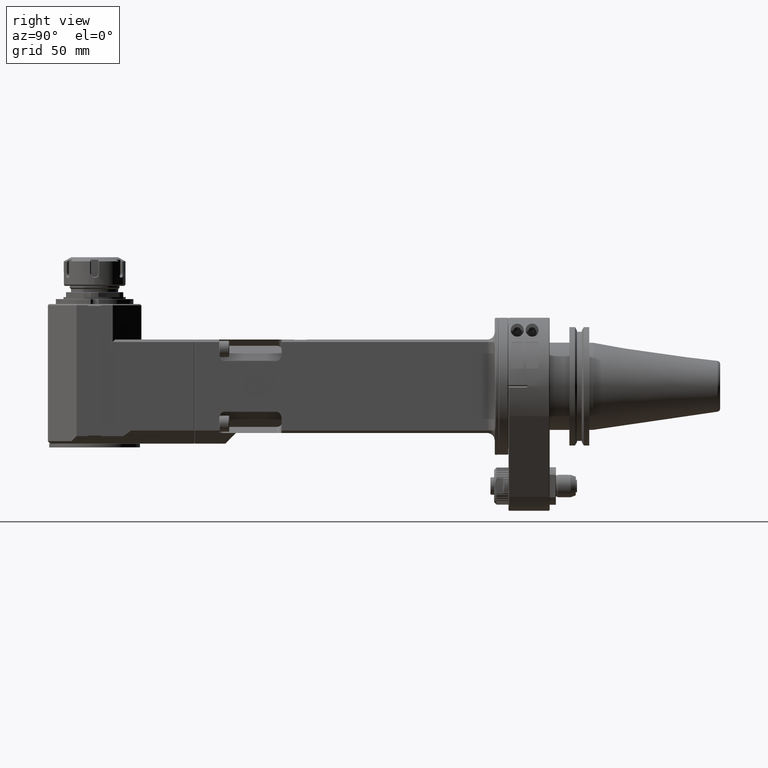
[diagram: clean part render]
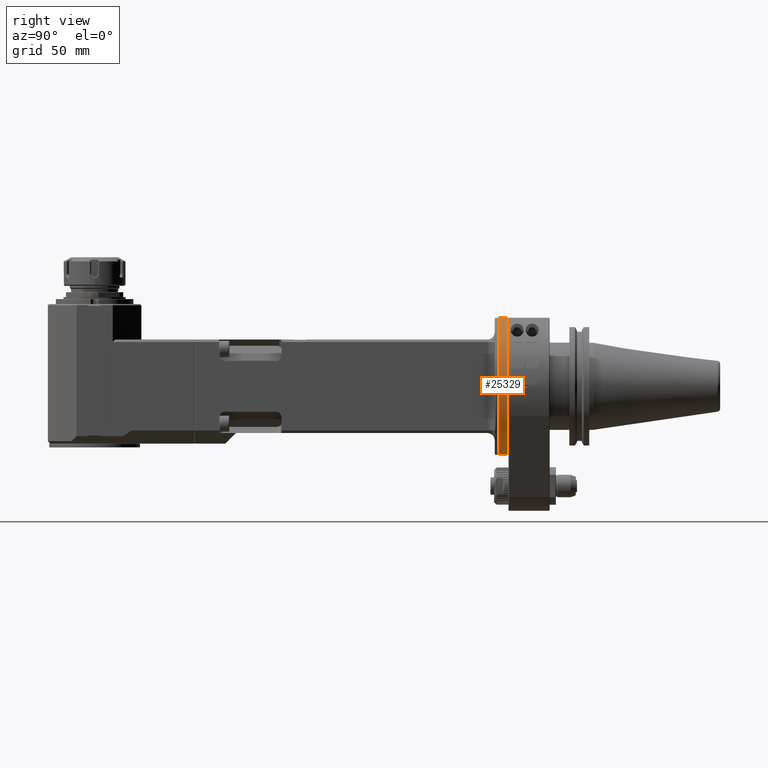
[diagram: same view with one face highlighted and labeled with its STEP entity id]
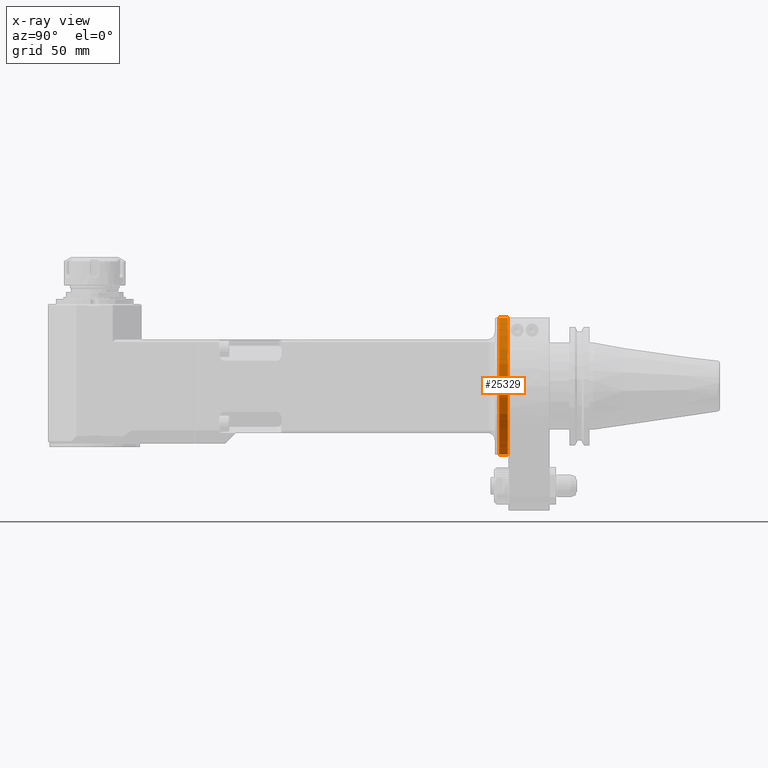
[diagram: x-ray of the same camera — body ghosted, the highlighted face saturated]
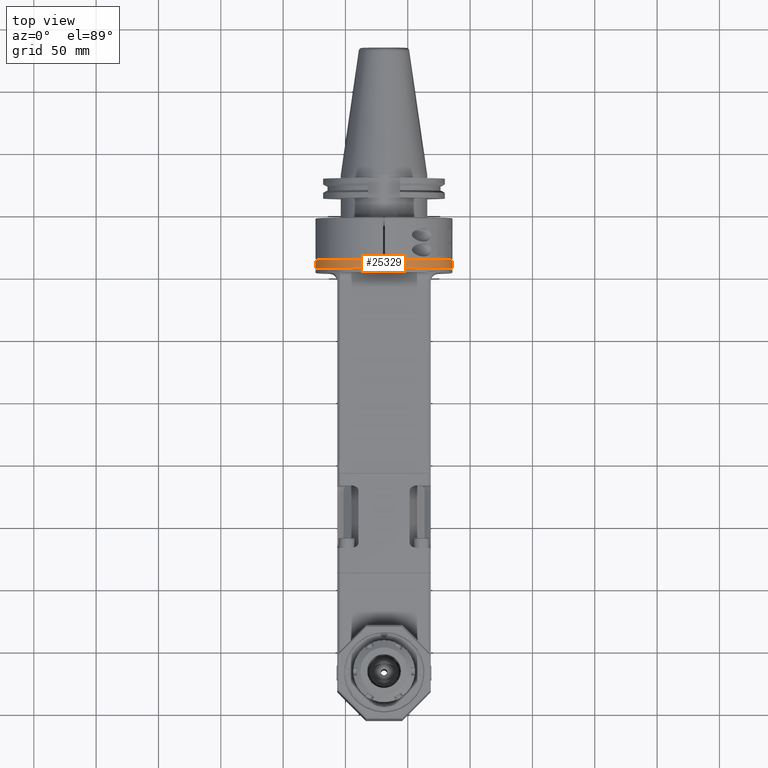
[diagram: same view with one face highlighted and labeled with its STEP entity id]
A machine part, right view. The second image highlights one B-rep face of the part: STEP entity #25329.
The next image is the same camera in x-ray: the body ghosted, the highlighted face saturated — about 0% of this face is hidden behind the body in this view.
A second angle (top view) of the same face is appended — the face is thin or edge-on in the first view.
In plain terms, the highlighted cylindrical surface (bore or boss wall) has radius 55 mm, axis along (-0, 1, 0).
Its self-contained STEP definition (entity closure, byte-faithful):
#864=B_SPLINE_CURVE_WITH_KNOTS('',3,(#40361,#40362,#40363,#40364,#40365,
#40366,#40367,#40368,#40369,#40370,#40371,#40372,#40373,#40374,#40375,#40376,
#40377,#40378,#40379,#40380,#40381,#40382),.UNSPECIFIED.,.F.,.F.,(4,2,2,
2,2,2,2,2,2,2,4),(4.76471715650682E-5,0.0575495201717146,0.132747012582082,
0.200670397972454,0.329421660951021,0.449239608103092,0.568898415474542,
0.690618546417329,0.751157152664828,0.81855536306621,0.870179635431588),
 .UNSPECIFIED.);
#865=B_SPLINE_CURVE_WITH_KNOTS('',3,(#40384,#40385,#40386,#40387,#40388,
#40389,#40390,#40391,#40392,#40393,#40394,#40395,#40396,#40397,#40398,#40399,
#40400,#40401,#40402,#40403,#40404,#40405),.UNSPECIFIED.,.F.,.F.,(4,2,2,
2,2,2,2,2,2,2,4),(3.95623181660155E-5,0.0393003026058012,0.0797638895583738,
0.179546209852878,0.343477320886014,0.506101937803756,0.668643096008396,
0.832623021348612,0.958288517178194,1.01388721531743,1.06788993555784),
 .UNSPECIFIED.);
#1851=LINE('',#40359,#3936);
#1852=LINE('',#40383,#3937);
#3936=VECTOR('',#30523,55.);
#3937=VECTOR('',#30524,55.);
#5683=CYLINDRICAL_SURFACE('',#27181,55.);
#6272=FACE_OUTER_BOUND('',#7819,.T.);
#7819=EDGE_LOOP('',(#17909,#17910,#17911,#17912,#17913,#17914,#17915,#17916,
#17917,#17918));
#9376=CIRCLE('',#27179,55.);
#9377=CIRCLE('',#27180,55.);
#9378=CIRCLE('',#27182,55.);
#9379=CIRCLE('',#27183,55.);
#10740=VERTEX_POINT('',#40348);
#10741=VERTEX_POINT('',#40349);
#10742=VERTEX_POINT('',#40354);
#10743=VERTEX_POINT('',#40355);
#10744=VERTEX_POINT('',#40358);
#10745=VERTEX_POINT('',#40360);
#13506=EDGE_CURVE('',#10740,#10741,#9376,.T.);
#13507=EDGE_CURVE('',#10741,#10740,#9377,.T.);
#13509=EDGE_CURVE('',#10742,#10743,#9378,.T.);
#13510=EDGE_CURVE('',#10743,#10742,#9379,.T.);
#13511=EDGE_CURVE('',#10743,#10744,#1851,.T.);
#13512=EDGE_CURVE('',#10744,#10745,#864,.T.);
#13513=EDGE_CURVE('',#10745,#10740,#1852,.T.);
#13514=EDGE_CURVE('',#10745,#10744,#865,.T.);
#17909=ORIENTED_EDGE('',*,*,#13509,.F.);
#17910=ORIENTED_EDGE('',*,*,#13510,.F.);
#17911=ORIENTED_EDGE('',*,*,#13511,.T.);
#17912=ORIENTED_EDGE('',*,*,#13512,.T.);
#17913=ORIENTED_EDGE('',*,*,#13513,.T.);
#17914=ORIENTED_EDGE('',*,*,#13506,.T.);
#17915=ORIENTED_EDGE('',*,*,#13507,.T.);
#17916=ORIENTED_EDGE('',*,*,#13513,.F.);
#17917=ORIENTED_EDGE('',*,*,#13514,.T.);
#17918=ORIENTED_EDGE('',*,*,#13511,.F.);
#25329=ADVANCED_FACE('',(#6272),#5683,.T.);
#27179=AXIS2_PLACEMENT_3D('',#40350,#30512,#30513);
#27180=AXIS2_PLACEMENT_3D('',#40351,#30514,#30515);
#27181=AXIS2_PLACEMENT_3D('',#40353,#30517,#30518);
#27182=AXIS2_PLACEMENT_3D('',#40356,#30519,#30520);
#27183=AXIS2_PLACEMENT_3D('',#40357,#30521,#30522);
#30512=DIRECTION('center_axis',(0.,1.,0.));
#30513=DIRECTION('ref_axis',(-1.,0.,0.));
#30514=DIRECTION('center_axis',(0.,1.,0.));
#30515=DIRECTION('ref_axis',(-1.,0.,0.));
#30517=DIRECTION('center_axis',(0.,1.,0.));
#30518=DIRECTION('ref_axis',(1.,0.,0.));
#30519=DIRECTION('center_axis',(0.,1.,0.));
#30520=DIRECTION('ref_axis',(1.,0.,0.));
#30521=DIRECTION('center_axis',(0.,1.,0.));
#30522=DIRECTION('ref_axis',(1.,0.,0.));
#30523=DIRECTION('',(0.,-1.,0.));
#30524=DIRECTION('',(0.,-1.,0.));
#40348=CARTESIAN_POINT('',(-55.,-7.499994945197,0.));
#40349=CARTESIAN_POINT('',(-7.65860274533289E-13,-7.49999494519918,55.0000000000028));
#40350=CARTESIAN_POINT('Origin',(0.,-7.499994945197,0.));
#40351=CARTESIAN_POINT('Origin',(0.,-7.499994945197,0.));
#40353=CARTESIAN_POINT('Origin',(0.,-8.395,0.));
#40354=CARTESIAN_POINT('',(-3.8377871362941E-13,-0.600006121446037,55.));
#40355=CARTESIAN_POINT('',(-55.,-0.600006121445001,6.73555739531044E-15));
#40356=CARTESIAN_POINT('Origin',(0.,-0.600006121445,0.));
#40357=CARTESIAN_POINT('Origin',(0.,-0.600006121445,0.));
#40358=CARTESIAN_POINT('',(-55.,-2.14967679933385,-6.95333184218648E-7));
#40359=CARTESIAN_POINT('',(-55.,-8.395,6.73555739531044E-15));
#40360=CARTESIAN_POINT('',(-54.9998972986273,-6.05039023038972,3.31134135429935E-7));
#40361=CARTESIAN_POINT('Ctrl Pts',(-55.,-2.15043295591499,-2.20427715030488E-7));
#40362=CARTESIAN_POINT('Ctrl Pts',(-55.0000000007682,-2.15033177080402,
0.191669915930976));
#40363=CARTESIAN_POINT('Ctrl Pts',(-54.998982183589,-2.17750009876705,0.381698172750492));
#40364=CARTESIAN_POINT('Ctrl Pts',(-54.994625191424,-2.30446481610494,0.805538719922634));
#40365=CARTESIAN_POINT('Ctrl Pts',(-54.9912983291755,-2.40879092740047,
0.985156582684189));
#40366=CARTESIAN_POINT('Ctrl Pts',(-54.986883755185,-2.55735827421071,1.20564031468998));
#40367=CARTESIAN_POINT('Ctrl Pts',(-54.9846298039082,-2.63754215578491,
1.30328037770137));
#40368=CARTESIAN_POINT('Ctrl Pts',(-54.9780481676223,-2.89845061269778,
1.56306099354884));
#40369=CARTESIAN_POINT('Ctrl Pts',(-54.9734503366162,-3.11123494168173,
1.71185358989585));
#40370=CARTESIAN_POINT('Ctrl Pts',(-54.9668642322466,-3.59691730519825,
1.91130579622192));
#40371=CARTESIAN_POINT('Ctrl Pts',(-54.9650468361352,-3.84661919659184,
1.96051685352648));
#40372=CARTESIAN_POINT('Ctrl Pts',(-54.9650341909436,-4.35030599588528,
1.96087134198238));
#40373=CARTESIAN_POINT('Ctrl Pts',(-54.9668340850872,-4.59976794218603,
1.91214405555804));
#40374=CARTESIAN_POINT('Ctrl Pts',(-54.9732052350787,-5.07178568556125,
1.71935109024444));
#40375=CARTESIAN_POINT('Ctrl Pts',(-54.9777051243508,-5.28756760341145,
1.57620375960628));
#40376=CARTESIAN_POINT('Ctrl Pts',(-54.9845546959644,-5.55967232273253,
1.30643755872568));
#40377=CARTESIAN_POINT('Ctrl Pts',(-54.986815070664,-5.64024579100598,1.20876622502135));
#40378=CARTESIAN_POINT('Ctrl Pts',(-54.9912540894889,-5.78988205137021,
0.987695556796586));
#40379=CARTESIAN_POINT('Ctrl Pts',(-54.9945843872942,-5.89424932953005,
0.808424073971605));
#40380=CARTESIAN_POINT('Ctrl Pts',(-54.9989704911713,-6.0220457194061,0.383655858467229));
#40381=CARTESIAN_POINT('Ctrl Pts',(-55.0000000035121,-6.04982188134921,
0.192300744327821));
#40382=CARTESIAN_POINT('Ctrl Pts',(-55.,-6.04979649265365,-1.00449260607288E-6));
#40383=CARTESIAN_POINT('',(-55.,-8.395,6.73555739531044E-15));
#40384=CARTESIAN_POINT('Ctrl Pts',(-55.,-6.05074996222938,-1.41378935680087E-6));
#40385=CARTESIAN_POINT('Ctrl Pts',(-54.9999999966359,-6.05065678949149,
-0.130871369254768));
#40386=CARTESIAN_POINT('Ctrl Pts',(-54.9995249148247,-6.03699916598477,
-0.262155299146508));
#40387=CARTESIAN_POINT('Ctrl Pts',(-54.9976749727695,-5.98389664429273,
-0.522721980869671));
#40388=CARTESIAN_POINT('Ctrl Pts',(-54.9962694453163,-5.94353590152498,
-0.652500241076953));
#40389=CARTESIAN_POINT('Ctrl Pts',(-54.9901941550887,-5.75942601262249,
-1.08270609700884));
#40390=CARTESIAN_POINT('Ctrl Pts',(-54.9851372458863,-5.58235002108501,
-1.28323120316228));
#40391=CARTESIAN_POINT('Ctrl Pts',(-54.9778059274902,-5.29212019907153,
-1.57265542096482));
#40392=CARTESIAN_POINT('Ctrl Pts',(-54.97330306417,-5.07701828127588,-1.71624522100271));
#40393=CARTESIAN_POINT('Ctrl Pts',(-54.9668837169478,-4.60556155759187,
-1.91078264480855));
#40394=CARTESIAN_POINT('Ctrl Pts',(-54.9650402752197,-4.35415433000889,
-1.96070077916902));
#40395=CARTESIAN_POINT('Ctrl Pts',(-54.9650434243085,-3.84524366954328,
-1.96061249762334));
#40396=CARTESIAN_POINT('Ctrl Pts',(-54.9668877901916,-3.59426480778179,
-1.91065847058262));
#40397=CARTESIAN_POINT('Ctrl Pts',(-54.9733006569341,-3.12312898094835,
-1.7163189134888));
#40398=CARTESIAN_POINT('Ctrl Pts',(-54.9778021909329,-2.90793586564603,
-1.57284059538695));
#40399=CARTESIAN_POINT('Ctrl Pts',(-54.9858716415635,-2.58866110478474,
-1.25420997096502));
#40400=CARTESIAN_POINT('Ctrl Pts',(-54.9906573721412,-2.42639828039594,
-1.05141813725737));
#40401=CARTESIAN_POINT('Ctrl Pts',(-54.9963102800069,-2.25532500537357,
-0.648922263421474));
#40402=CARTESIAN_POINT('Ctrl Pts',(-54.9977000595956,-2.21541645983678,
-0.519866940915483));
#40403=CARTESIAN_POINT('Ctrl Pts',(-54.9995298634487,-2.16283504564537,
-0.260788866840543));
#40404=CARTESIAN_POINT('Ctrl Pts',(-54.9999999976026,-2.14926553454394,
-0.130172442897446));
#40405=CARTESIAN_POINT('Ctrl Pts',(-55.,-2.14917110805236,-1.01293348195308E-6));